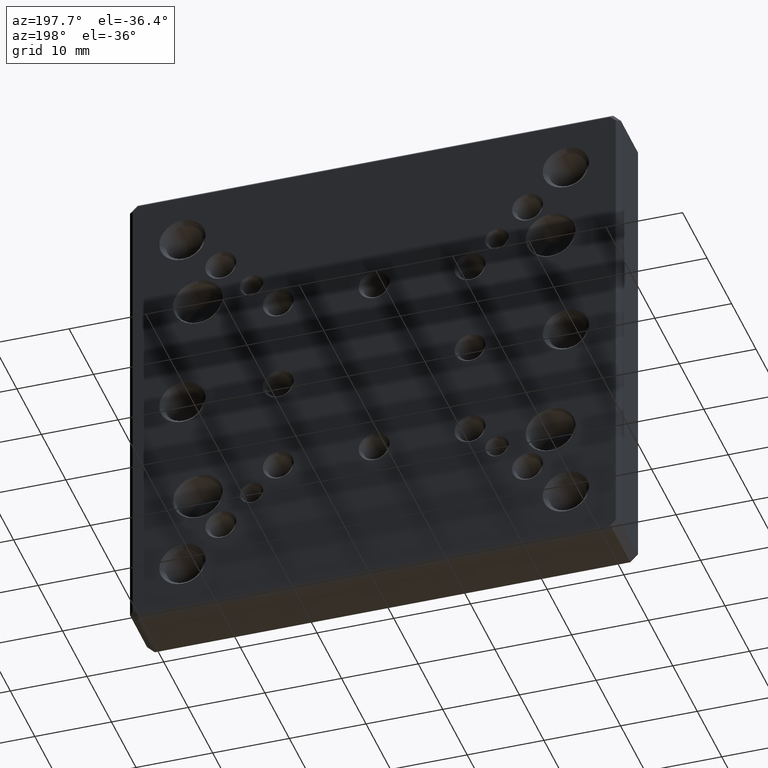
[diagram: clean part render]
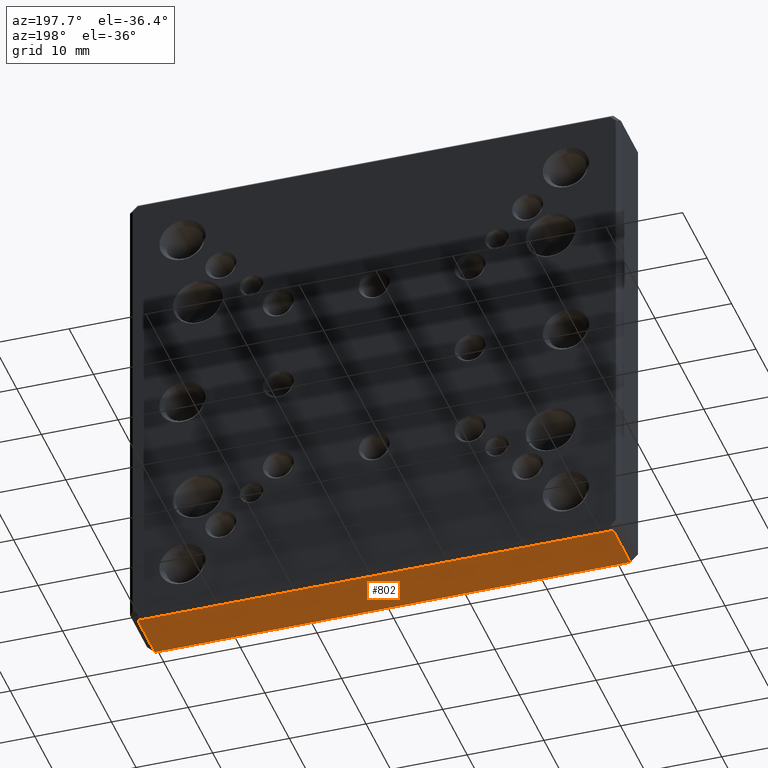
[diagram: same view with one face highlighted and labeled with its STEP entity id]
A machine part, auxiliary view. The second image highlights one B-rep face of the part: STEP entity #802.
In plain terms, the highlighted planar face has unit normal (0, -0, 1).
Its self-contained STEP definition (entity closure, byte-faithful):
#25 = DIRECTION ( 'NONE',  ( 1.000000000000000000, 0.000000000000000000, -1.084202172485504434E-16 ) ) ;
#85 = EDGE_CURVE ( 'NONE', #406, #447, #153, .T. ) ;
#120 = CARTESIAN_POINT ( 'NONE',  ( 31.00000000000000000, 7.500000000000013323, -32.00000000000000000 ) ) ;
#153 = LINE ( 'NONE', #366, #1738 ) ;
#171 = PLANE ( 'NONE',  #522 ) ;
#214 = CARTESIAN_POINT ( 'NONE',  ( -30.99999999999998579, 7.500000000000013323, -31.99999999999999289 ) ) ;
#366 = CARTESIAN_POINT ( 'NONE',  ( -30.99999999999998579, 8.000000000000000000, -31.99999999999999289 ) ) ;
#381 = EDGE_CURVE ( 'NONE', #447, #1749, #1611, .T. ) ;
#386 = DIRECTION ( 'NONE',  ( 1.000000000000000000, 0.000000000000000000, -1.084202172485504434E-16 ) ) ;
#406 = VERTEX_POINT ( 'NONE', #2167 ) ;
#447 = VERTEX_POINT ( 'NONE', #214 ) ;
#516 = DIRECTION ( 'NONE',  ( 1.084202172485504434E-16, -0.000000000000000000, 1.000000000000000000 ) ) ;
#522 = AXIS2_PLACEMENT_3D ( 'NONE', #2301, #516, #386 ) ;
#585 = DIRECTION ( 'NONE',  ( -1.000000000000000000, 0.000000000000000000, 1.084202172485504434E-16 ) ) ;
#802 = ADVANCED_FACE ( 'NONE', ( #2153 ), #171, .F. ) ;
#833 = CARTESIAN_POINT ( 'NONE',  ( 31.00000000000000000, 0.4999999999999865663, -32.00000000000000000 ) ) ;
#896 = VECTOR ( 'NONE', #585, 1000.000000000000000 ) ;
#949 = VECTOR ( 'NONE', #25, 1000.000000000000000 ) ;
#988 = DIRECTION ( 'NONE',  ( 0.000000000000000000, -1.000000000000000000, 0.000000000000000000 ) ) ;
#1048 = EDGE_CURVE ( 'NONE', #1296, #406, #1662, .T. ) ;
#1069 = ORIENTED_EDGE ( 'NONE', *, *, #1048, .T. ) ;
#1177 = EDGE_CURVE ( 'NONE', #1749, #1296, #2265, .T. ) ;
#1287 = VECTOR ( 'NONE', #988, 1000.000000000000000 ) ;
#1296 = VERTEX_POINT ( 'NONE', #833 ) ;
#1413 = ORIENTED_EDGE ( 'NONE', *, *, #1177, .T. ) ;
#1471 = CARTESIAN_POINT ( 'NONE',  ( 31.00000000000000000, 7.500000000000013323, -32.00000000000000000 ) ) ;
#1611 = LINE ( 'NONE', #1471, #949 ) ;
#1662 = LINE ( 'NONE', #2186, #896 ) ;
#1692 = CARTESIAN_POINT ( 'NONE',  ( 31.00000000000000000, 8.000000000000000000, -32.00000000000000000 ) ) ;
#1738 = VECTOR ( 'NONE', #1769, 1000.000000000000000 ) ;
#1749 = VERTEX_POINT ( 'NONE', #120 ) ;
#1769 = DIRECTION ( 'NONE',  ( 0.000000000000000000, 1.000000000000000000, 0.000000000000000000 ) ) ;
#1788 = ORIENTED_EDGE ( 'NONE', *, *, #85, .T. ) ;
#2054 = ORIENTED_EDGE ( 'NONE', *, *, #381, .T. ) ;
#2151 = EDGE_LOOP ( 'NONE', ( #1413, #1069, #1788, #2054 ) ) ;
#2153 = FACE_OUTER_BOUND ( 'NONE', #2151, .T. ) ;
#2167 = CARTESIAN_POINT ( 'NONE',  ( -30.99999999999998579, 0.4999999999999865663, -31.99999999999999289 ) ) ;
#2186 = CARTESIAN_POINT ( 'NONE',  ( -32.00000000000000000, 0.4999999999999865663, -31.99999999999999289 ) ) ;
#2265 = LINE ( 'NONE', #1692, #1287 ) ;
#2301 = CARTESIAN_POINT ( 'NONE',  ( -32.00000000000000000, 8.000000000000000000, -31.99999999999999289 ) ) ;